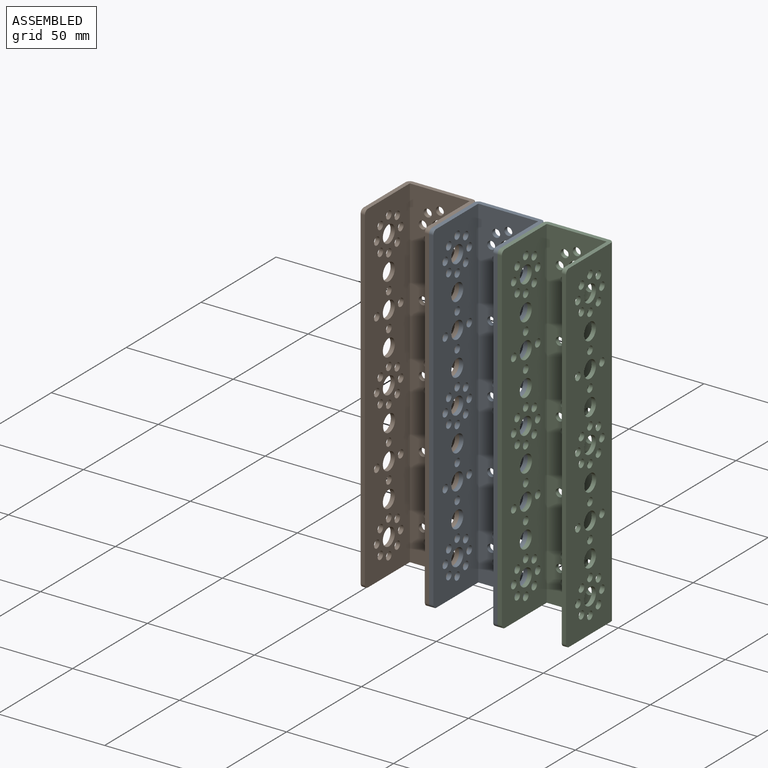
[diagram: assembled view]
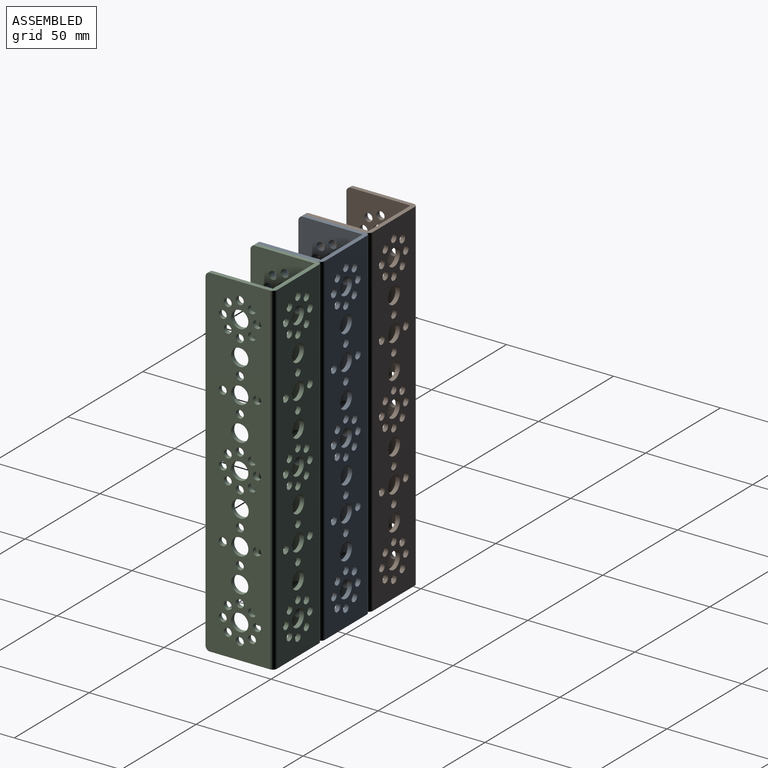
[diagram: assembled view, second angle]
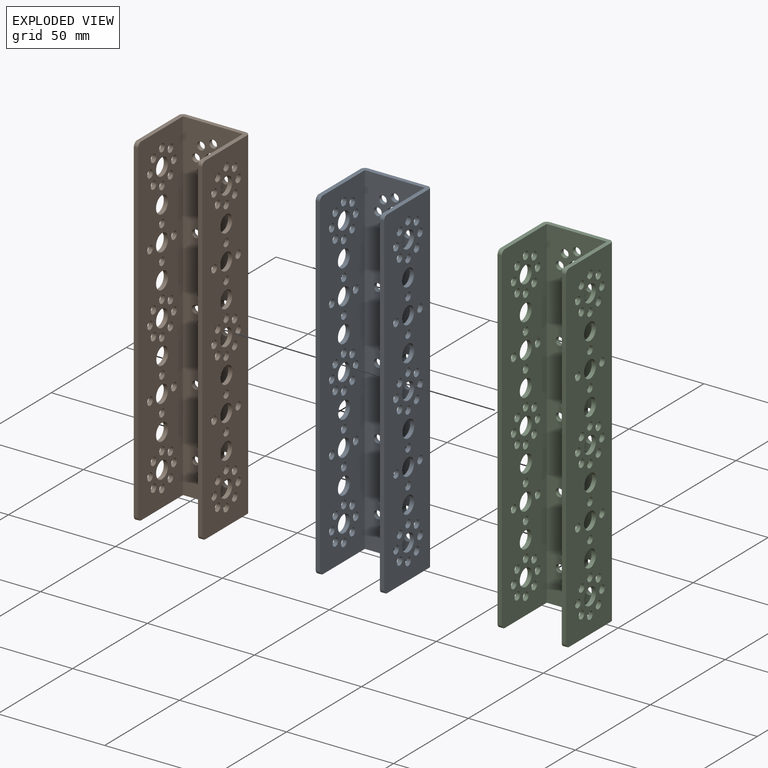
[diagram: exploded view]
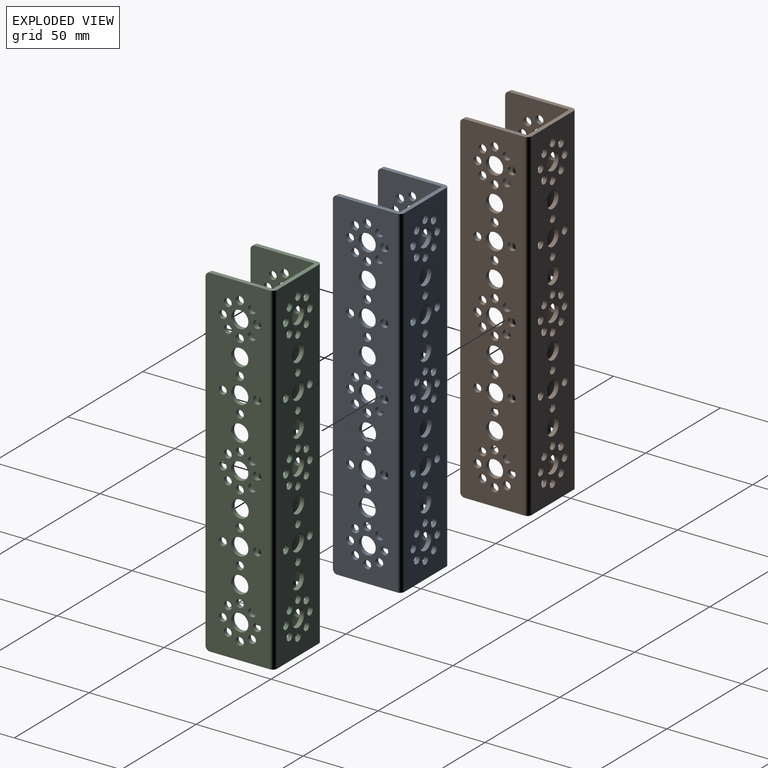
[diagram: exploded view, second angle]
ASSEMBLY  parts=3 mates=2
PART A: 139 faces, bbox 32x32x160 mm
  f0: cylinder r=1.85mm len=3.7mm, axis (1,0,0), area 23.2mm2, adj f123,f125
  f1: cylinder r=1.85mm len=3.7mm, axis (1,0,0), area 23.2mm2, adj f127,f129
  f2: cylinder r=1.85mm len=3.7mm, axis (1,0,0), area 23.2mm2, adj f123,f125
  f3: cylinder r=1.85mm len=3.7mm, axis (1,0,0), area 23.2mm2, adj f127,f129
  f4: cylinder r=1.85mm len=3.7mm, axis (1,0,0), area 23.2mm2, adj f123,f125
  f5: cylinder r=1.85mm len=3.7mm, axis (1,0,0), area 23.2mm2, adj f127,f129
  f6: cylinder r=1.85mm len=3.7mm, axis (1,0,0), area 23.2mm2, adj f123,f125
  f7: cylinder r=1.85mm len=3.7mm, axis (1,0,0), area 23.2mm2, adj f127,f129
  f8: cylinder r=1.85mm len=3.7mm, axis (1,0,0), area 23.2mm2, adj f123,f125
  f9: cylinder r=1.85mm len=3.7mm, axis (1,0,0), area 23.2mm2, adj f127,f129
  f10: cylinder r=1.85mm len=3.7mm, axis (1,0,0), area 23.2mm2, adj f123,f125
  f11: cylinder r=1.85mm len=3.7mm, axis (1,0,0), area 23.2mm2, adj f127,f129
  f12: cylinder r=4mm len=8mm, axis (1,0,0), area 50.3mm2, adj f123,f125
  f13: cylinder r=4mm len=8mm, axis (1,0,0), area 50.3mm2, adj f127,f129
  f14: cylinder r=1.85mm len=3.7mm, axis (1,0,0), area 23.2mm2, adj f123,f125
  f15: cylinder r=1.85mm len=3.7mm, axis (1,0,0), area 23.2mm2, adj f127,f129
  f16: cylinder r=1.85mm len=3.7mm, axis (1,0,0), area 23.2mm2, adj f123,f125
  f17: cylinder r=1.85mm len=3.7mm, axis (1,0,0), area 23.2mm2, adj f127,f129
  f18: cylinder r=1.85mm len=3.7mm, axis (1,0,0), area 23.2mm2, adj f123,f125
  f19: cylinder r=1.85mm len=3.7mm, axis (1,0,0), area 23.2mm2, adj f127,f129
  f20: cylinder r=1.85mm len=3.7mm, axis (1,0,0), area 23.2mm2, adj f123,f125
  f21: cylinder r=1.85mm len=3.7mm, axis (1,0,0), area 23.2mm2, adj f127,f129
  f22: cylinder r=1.85mm len=3.7mm, axis (1,0,0), area 23.2mm2, adj f123,f125
  f23: cylinder r=1.85mm len=3.7mm, axis (1,0,0), area 23.2mm2, adj f127,f129
  f24: cylinder r=1.85mm len=3.7mm, axis (1,0,0), area 23.2mm2, adj f123,f125
  f25: cylinder r=1.85mm len=3.7mm, axis (1,0,0), area 23.2mm2, adj f127,f129
  f26: cylinder r=1.85mm len=3.7mm, axis (1,0,0), area 23.2mm2, adj f123,f125
  f27: cylinder r=1.85mm len=3.7mm, axis (1,0,0), area 23.2mm2, adj f127,f129
  f28: cylinder r=1.85mm len=3.7mm, axis (1,0,0), area 23.2mm2, adj f123,f125
  f29: cylinder r=1.85mm len=3.7mm, axis (1,0,0), area 23.2mm2, adj f127,f129
  f30: cylinder r=1.85mm len=3.7mm, axis (1,0,0), area 23.2mm2, adj f123,f125
  f31: cylinder r=1.85mm len=3.7mm, axis (1,0,0), area 23.2mm2, adj f127,f129
  f32: cylinder r=1.85mm len=3.7mm, axis (1,0,0), area 23.2mm2, adj f123,f125
  f33: cylinder r=1.85mm len=3.7mm, axis (1,0,0), area 23.2mm2, adj f127,f129
  f34: cylinder r=4mm len=8mm, axis (1,0,0), area 50.3mm2, adj f123,f125
  f35: cylinder r=4mm len=8mm, axis (1,0,0), area 50.3mm2, adj f127,f129
  f36: cylinder r=1.85mm len=3.7mm, axis (1,0,0), area 23.2mm2, adj f123,f125
  f37: cylinder r=1.85mm len=3.7mm, axis (1,0,0), area 23.2mm2, adj f127,f129
  f38: cylinder r=1.85mm len=3.7mm, axis (1,0,0), area 23.2mm2, adj f123,f125
  f39: cylinder r=1.85mm len=3.7mm, axis (1,0,0), area 23.2mm2, adj f127,f129
  f40: cylinder r=1.85mm len=3.7mm, axis (1,0,0), area 23.2mm2, adj f123,f125
  f41: cylinder r=1.85mm len=3.7mm, axis (1,0,0), area 23.2mm2, adj f127,f129
  f42: cylinder r=1.85mm len=3.7mm, axis (1,0,0), area 23.2mm2, adj f123,f125
  f43: cylinder r=1.85mm len=3.7mm, axis (1,0,0), area 23.2mm2, adj f127,f129
  f44: cylinder r=4mm len=8mm, axis (1,0,0), area 50.3mm2, adj f123,f125
  f45: cylinder r=4mm len=8mm, axis (1,0,0), area 50.3mm2, adj f127,f129
  f46: cylinder r=1.85mm len=3.7mm, axis (1,0,0), area 23.2mm2, adj f123,f125
  f47: cylinder r=1.85mm len=3.7mm, axis (1,0,0), area 23.2mm2, adj f127,f129
  f48: cylinder r=1.85mm len=3.7mm, axis (1,0,0), area 23.2mm2, adj f123,f125
  f49: cylinder r=1.85mm len=3.7mm, axis (1,0,0), area 23.2mm2, adj f127,f129
  f50: cylinder r=1.85mm len=3.7mm, axis (1,0,0), area 23.2mm2, adj f123,f125
  f51: cylinder r=1.85mm len=3.7mm, axis (1,0,0), area 23.2mm2, adj f127,f129
  f52: cylinder r=1.85mm len=3.7mm, axis (1,0,0), area 23.2mm2, adj f123,f125
  f53: cylinder r=1.85mm len=3.7mm, axis (1,0,0), area 23.2mm2, adj f127,f129
  f54: cylinder r=1.85mm len=3.7mm, axis (1,0,0), area 23.2mm2, adj f123,f125
  f55: cylinder r=1.85mm len=3.7mm, axis (1,0,0), area 23.2mm2, adj f127,f129
  f56: cylinder r=1.85mm len=3.7mm, axis (1,0,0), area 23.2mm2, adj f123,f125
  f57: cylinder r=1.85mm len=3.7mm, axis (1,0,0), area 23.2mm2, adj f127,f129
  f58: cylinder r=1.85mm len=3.7mm, axis (1,0,0), area 23.2mm2, adj f123,f125
  f59: cylinder r=1.85mm len=3.7mm, axis (1,0,0), area 23.2mm2, adj f127,f129
  f60: cylinder r=1.85mm len=3.7mm, axis (1,0,0), area 23.2mm2, adj f123,f125
  f61: cylinder r=1.85mm len=3.7mm, axis (1,0,0), area 23.2mm2, adj f127,f129
  f62: cylinder r=4mm len=8mm, axis (1,0,0), area 50.3mm2, adj f123,f125
  f63: cylinder r=4mm len=8mm, axis (1,0,0), area 50.3mm2, adj f127,f129
  f64: cylinder r=1.85mm len=3.7mm, axis (1,0,0), area 23.2mm2, adj f123,f125
  f65: cylinder r=1.85mm len=3.7mm, axis (1,0,0), area 23.2mm2, adj f127,f129
  f66: cylinder r=1.85mm len=3.7mm, axis (1,0,0), area 23.2mm2, adj f123,f125
  f67: cylinder r=1.85mm len=3.7mm, axis (1,0,0), area 23.2mm2, adj f127,f129
  f68: cylinder r=1.85mm len=3.7mm, axis (1,0,0), area 23.2mm2, adj f123,f125
  f69: cylinder r=1.85mm len=3.7mm, axis (1,0,0), area 23.2mm2, adj f127,f129
  f70: cylinder r=1.85mm len=3.7mm, axis (1,0,0), area 23.2mm2, adj f123,f125
  f71: cylinder r=1.85mm len=3.7mm, axis (1,0,0), area 23.2mm2, adj f127,f129
  f72: cylinder r=4mm len=8mm, axis (1,0,0), area 50.3mm2, adj f123,f125
  f73: cylinder r=4mm len=8mm, axis (1,0,0), area 50.3mm2, adj f127,f129
  f74: cylinder r=4mm len=8mm, axis (1,0,0), area 50.3mm2, adj f123,f125
  f75: cylinder r=4mm len=8mm, axis (1,0,0), area 50.3mm2, adj f127,f129
  f76: cylinder r=4mm len=8mm, axis (1,0,0), area 50.3mm2, adj f123,f125
  f77: cylinder r=4mm len=8mm, axis (1,0,0), area 50.3mm2, adj f127,f129
  f78: cylinder r=4mm len=8mm, axis (1,0,0), area 50.3mm2, adj f123,f125
  f79: cylinder r=4mm len=8mm, axis (1,0,0), area 50.3mm2, adj f127,f129
  f80: cylinder r=4mm len=8mm, axis (1,0,0), area 50.3mm2, adj f123,f125
  f81: cylinder r=4mm len=8mm, axis (1,0,0), area 50.3mm2, adj f127,f129
  f82: cylinder r=1.85mm len=3.7mm, axis (0,1,0), area 23.2mm2, adj f126,f130
  f83: cylinder r=1.85mm len=3.7mm, axis (0,1,0), area 23.2mm2, adj f126,f130
  f84: cylinder r=1.85mm len=3.7mm, axis (0,1,0), area 23.2mm2, adj f126,f130
  f85: cylinder r=1.85mm len=3.7mm, axis (0,1,0), area 23.2mm2, adj f126,f130
  f86: cylinder r=1.85mm len=3.7mm, axis (0,1,0), area 23.2mm2, adj f126,f130
  f87: cylinder r=1.85mm len=3.7mm, axis (0,1,0), area 23.2mm2, adj f126,f130
  f88: cylinder r=4mm len=8mm, axis (0,1,0), area 50.3mm2, adj f126,f130
  f89: cylinder r=1.85mm len=3.7mm, axis (0,1,0), area 23.2mm2, adj f126,f130
  f90: cylinder r=1.85mm len=3.7mm, axis (0,1,0), area 23.2mm2, adj f126,f130
  f91: cylinder r=1.85mm len=3.7mm, axis (0,1,0), area 23.2mm2, adj f126,f130
  f92: cylinder r=1.85mm len=3.7mm, axis (0,1,0), area 23.2mm2, adj f126,f130
  f93: cylinder r=1.85mm len=3.7mm, axis (0,1,0), area 23.2mm2, adj f126,f130
  f94: cylinder r=1.85mm len=3.7mm, axis (0,1,0), area 23.2mm2, adj f126,f130
  f95: cylinder r=1.85mm len=3.7mm, axis (0,1,0), area 23.2mm2, adj f126,f130
  f96: cylinder r=1.85mm len=3.7mm, axis (0,1,0), area 23.2mm2, adj f126,f130
  f97: cylinder r=1.85mm len=3.7mm, axis (0,1,0), area 23.2mm2, adj f126,f130
  f98: cylinder r=1.85mm len=3.7mm, axis (0,1,0), area 23.2mm2, adj f126,f130
  f99: cylinder r=4mm len=8mm, axis (0,1,0), area 50.3mm2, adj f126,f130
  f100: cylinder r=1.85mm len=3.7mm, axis (0,1,0), area 23.2mm2, adj f126,f130
  f101: cylinder r=1.85mm len=3.7mm, axis (0,1,0), area 23.2mm2, adj f126,f130
  f102: cylinder r=1.85mm len=3.7mm, axis (0,1,0), area 23.2mm2, adj f126,f130
  f103: cylinder r=1.85mm len=3.7mm, axis (0,1,0), area 23.2mm2, adj f126,f130
  f104: cylinder r=4mm len=8mm, axis (0,1,0), area 50.3mm2, adj f126,f130
  f105: cylinder r=1.85mm len=3.7mm, axis (0,1,0), area 23.2mm2, adj f126,f130
  f106: cylinder r=1.85mm len=3.7mm, axis (0,1,0), area 23.2mm2, adj f126,f130
  f107: cylinder r=1.85mm len=3.7mm, axis (0,1,0), area 23.2mm2, adj f126,f130
  f108: cylinder r=1.85mm len=3.7mm, axis (0,1,0), area 23.2mm2, adj f126,f130
  f109: cylinder r=1.85mm len=3.7mm, axis (0,1,0), area 23.2mm2, adj f126,f130
  f110: cylinder r=1.85mm len=3.7mm, axis (0,1,0), area 23.2mm2, adj f126,f130
  f111: cylinder r=1.85mm len=3.7mm, axis (0,1,0), area 23.2mm2, adj f126,f130
  f112: cylinder r=1.85mm len=3.7mm, axis (0,1,0), area 23.2mm2, adj f126,f130
  f113: cylinder r=4mm len=8mm, axis (0,1,0), area 50.3mm2, adj f126,f130
  f114: cylinder r=1.85mm len=3.7mm, axis (0,1,0), area 23.2mm2, adj f126,f130
  f115: cylinder r=1.85mm len=3.7mm, axis (0,1,0), area 23.2mm2, adj f126,f130
  f116: cylinder r=1.85mm len=3.7mm, axis (0,1,0), area 23.2mm2, adj f126,f130
  f117: cylinder r=1.85mm len=3.7mm, axis (0,1,0), area 23.2mm2, adj f126,f130
  f118: cylinder r=4mm len=8mm, axis (0,1,0), area 50.3mm2, adj f126,f130
  f119: cylinder r=4mm len=8mm, axis (0,1,0), area 50.3mm2, adj f126,f130
  f120: cylinder r=4mm len=8mm, axis (0,1,0), area 50.3mm2, adj f126,f130
  f121: cylinder r=4mm len=8mm, axis (0,1,0), area 50.3mm2, adj f126,f130
  f122: cylinder r=4mm len=8mm, axis (0,1,0), area 50.3mm2, adj f126,f130
  f123: plane 160x30mm, normal (1,0,0), area 4001.8mm2, adj f0,f2,f4,f6,f8,f10,f12,f14
  f124: plane 156x2mm, normal (0,-1,0), area 312mm2, adj f123,f125,f134,f136
  f125: plane 160x30mm, normal (-1,0,0), area 4001.8mm2, adj f0,f2,f4,f6,f8,f10,f12,f14
  f126: plane 160x28mm, normal (0,-1,0), area 3683.5mm2, adj f82,f83,f84,f85,f86,f87,f88,f89
  f127: plane 160x30mm, normal (1,0,0), area 4001.8mm2, adj f1,f3,f5,f7,f9,f11,f13,f15
  f128: plane 156x2mm, normal (0,-1,0), area 312mm2, adj f127,f129,f133,f135
  f129: plane 160x30mm, normal (-1,0,0), area 4001.8mm2, adj f1,f3,f5,f7,f9,f11,f13,f15
  f130: plane 160x28mm, normal (0,1,0), area 3683.5mm2, adj f82,f83,f84,f85,f86,f87,f88,f89
  f131: plane 32x30mm, normal (0,0,-1), area 174.3mm2, adj f123,f125,f126,f127,f129,f130,f133,f134
  f132: plane 32x30mm, normal (0,0,1), area 174.3mm2, adj f123,f125,f126,f127,f129,f130,f135,f136
  f133: cylinder r=2mm len=2mm, axis (-1,0,0), area 6.3mm2, adj f127,f128,f129,f131
  f134: cylinder r=2mm len=2mm, axis (-1,0,0), area 6.3mm2, adj f123,f124,f125,f131
  f135: cylinder r=2mm len=2mm, axis (1,0,0), area 6.3mm2, adj f127,f128,f129,f132
  f136: cylinder r=2mm len=2mm, axis (1,0,0), area 6.3mm2, adj f123,f124,f125,f132
  f137: cylinder r=2mm len=160mm, axis (0,0,1), area 502.7mm2, adj f129,f130,f131,f132
  f138: cylinder r=2mm len=160mm, axis (0,0,1), area 502.7mm2, adj f123,f130,f131,f132
PART B: same geometry as A
PART C: same geometry as A
PLACE A t=(0,-16,80)mm
PLACE B t=(-32,-16,80)mm
PLACE C t=(32,-16,80)mm
MATE fastened A.f62 <-> B.f62  axis (-1,0,0) through (-16,-16,64)mm
MATE fastened C.f62 <-> A.f62  axis (-1,0,0) through (16,-16,64)mm
